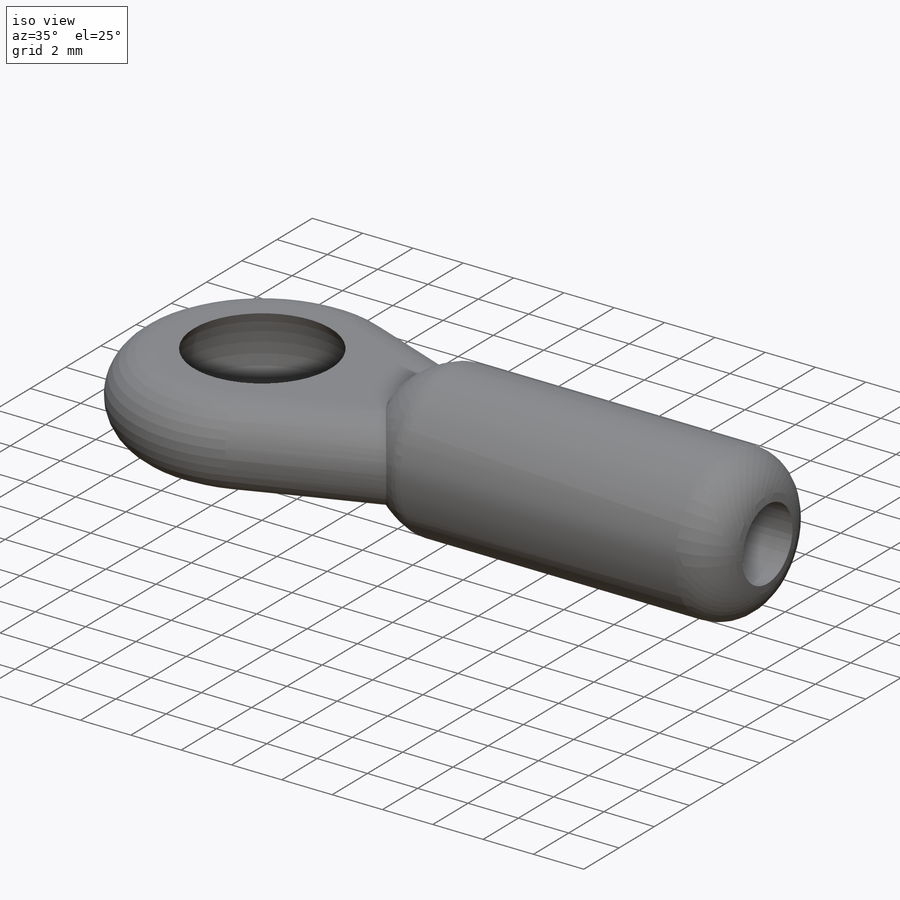
[diagram: iso view]
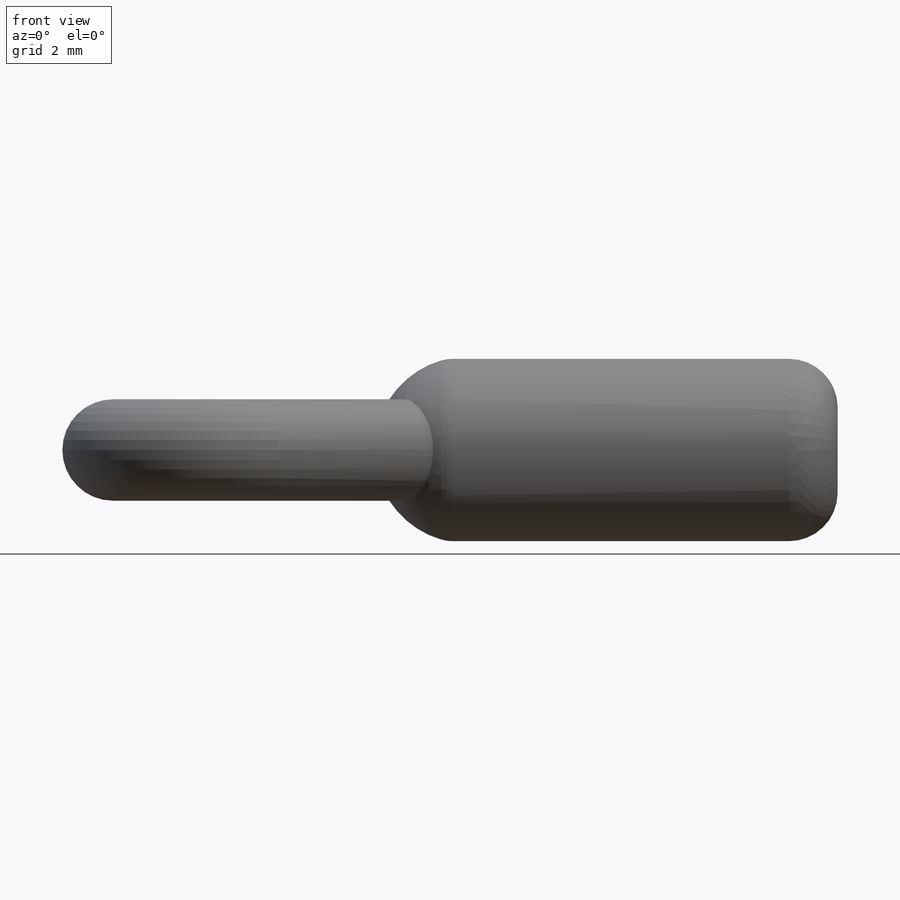
[diagram: front view]
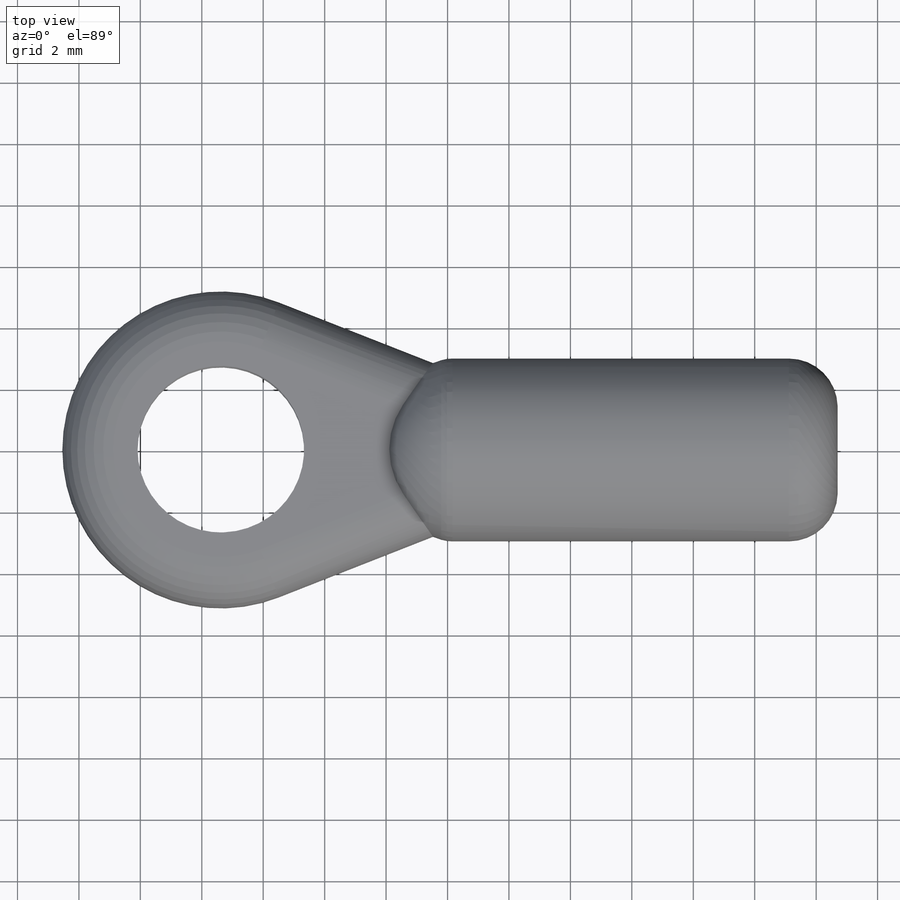
[diagram: top view]
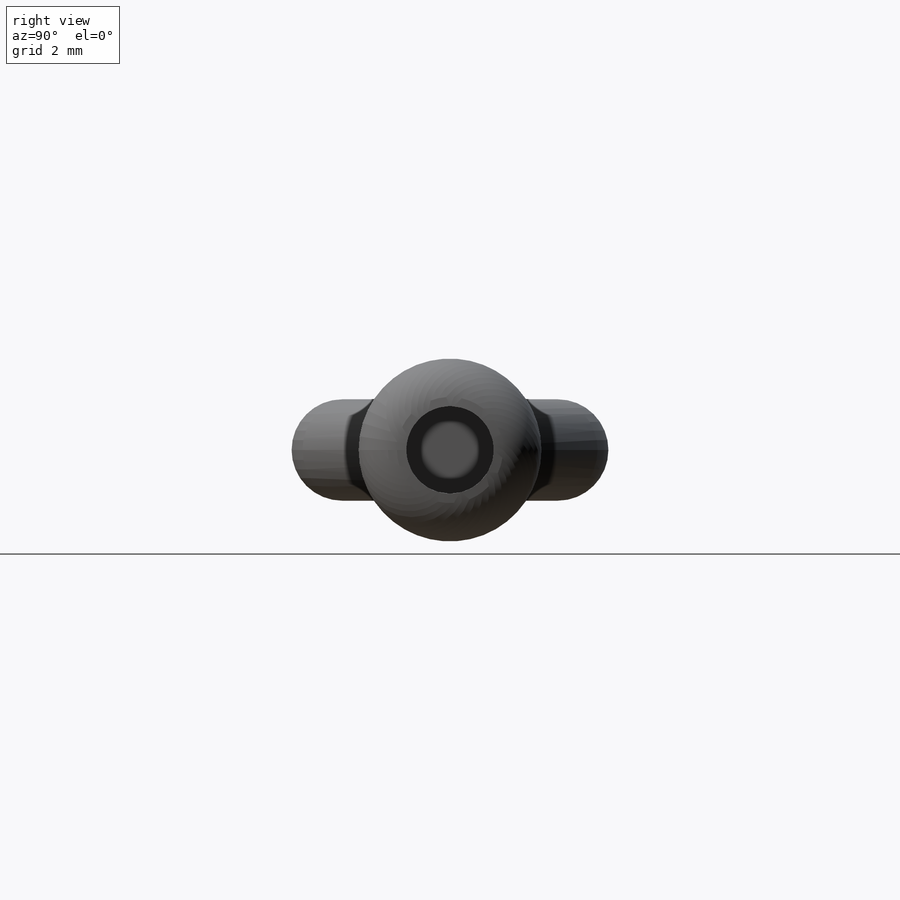
[diagram: right view]
SOLIDWORKS PART (.sldprt)
format: sldprt  version: not decoded by parser v0  size: 237,568 bytes
history: native  units: mm
features: sketch x3, fillet x2, material x1, revolve x1, extrude x1, cut_revolve x1 (+11 scaffold rows collapsed)
feature tree (20):
  scaffold x11  (default folders/planes/origin — collapsed)
  material  "Material <not specified>"
  sketch  "Sketch3"  dims[c1.D5=~43.201289mm c1.D6=1.27mm c1.D1=2.8448mm c1.D2=~2.976562mm c1.D3=~2.38125mm c1.D4=~15.08125mm c2.D5=11.1125mm]
  revolve  "Revolve1"  Angle=360deg
  sketch  "Sketch4"  dims[c1.D1=~5.159375mm c1.D2=~5.159375mm c1.D4=~5.159375mm c2.D1=5.1562mm c2.D4=~4.365625mm c2.D3=~5.159375mm c3.D4=6.35mm c3.D5=~5.159375mm c3.D1=~7.540625mm]
  extrude  "Boss-Extrude2"  Depth=1.651mm
  fillet  "Fillet5"  Radius=1.651mm
  fillet  "Fillet7"  Radius=1.651mm
  sketch  "Sketch14"  dims[c1.D2=3.175mm c1.D3=2.5781mm c1.D1=~5.159375mm c2.D2=5.1562mm c2.D3=2.5781mm]
  cut_revolve  "Cut-Revolve4"  Angle=360deg
decode coverage: 8 of 8 modeling features carry decoded parameters
note: ~ marks probable driven/reference dimensions
note: suppression state not decoded; provenance and decode notes live in map.json
